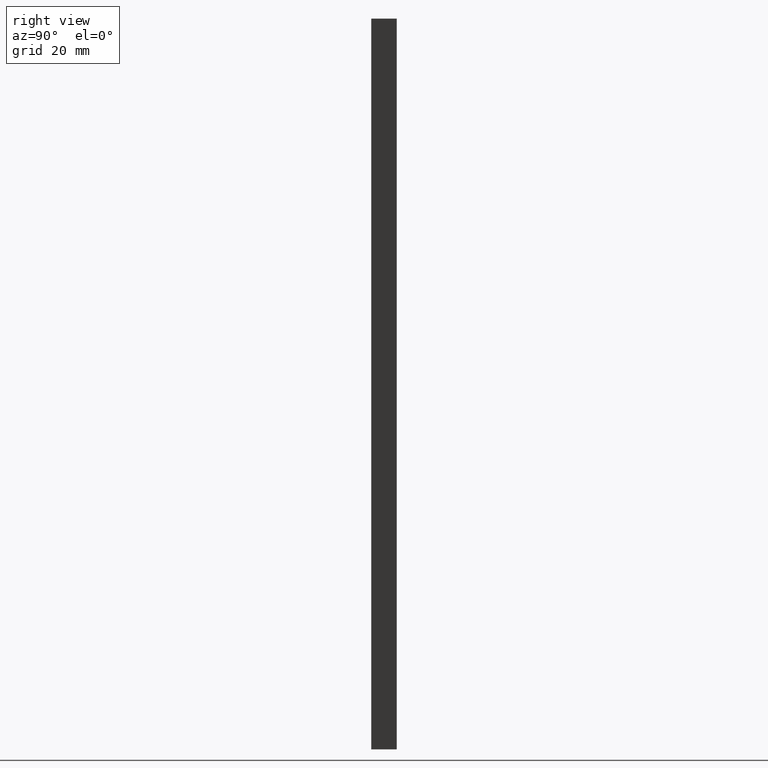
[diagram: clean part render]
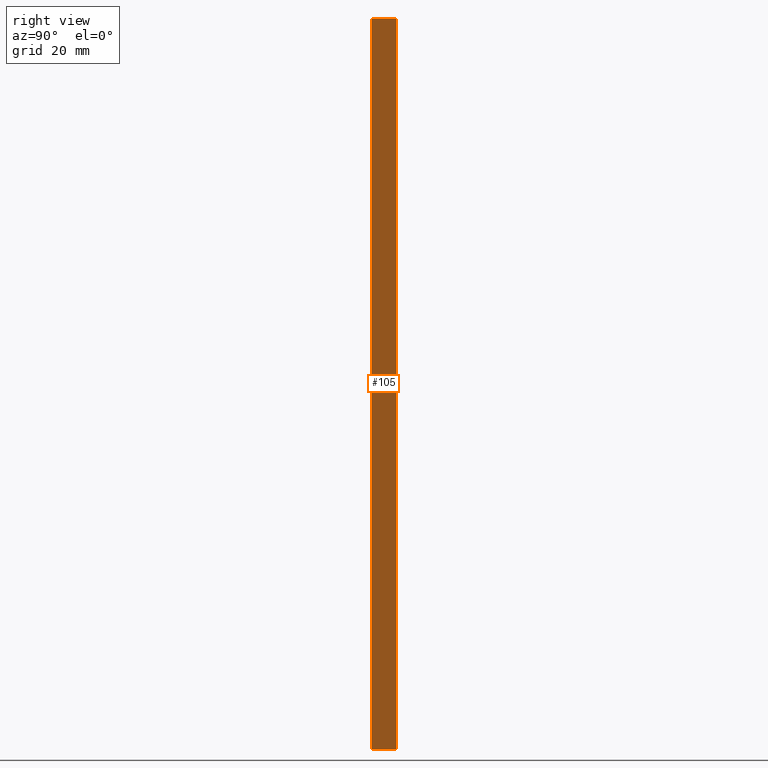
[diagram: same view with one face highlighted and labeled with its STEP entity id]
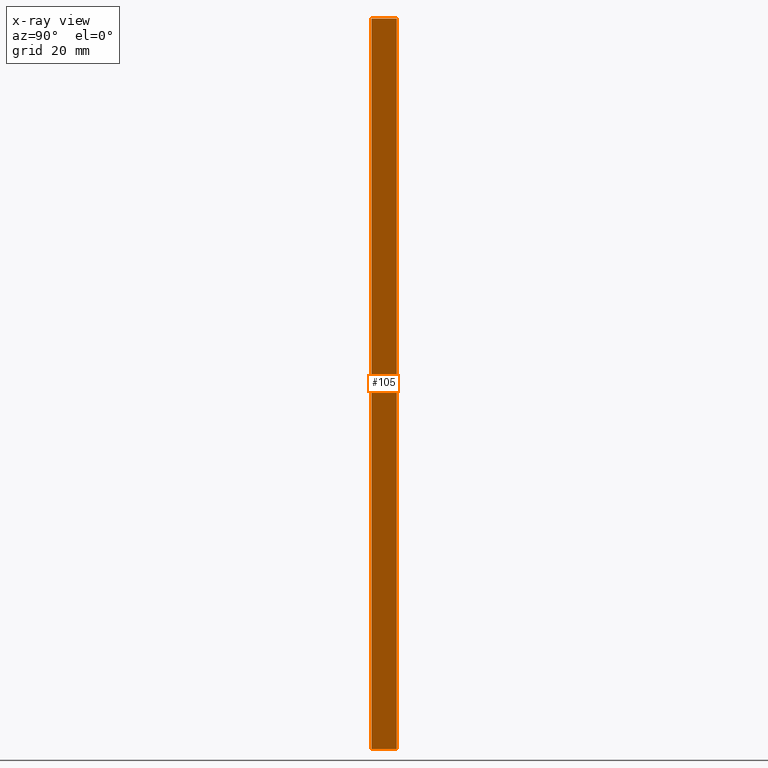
[diagram: x-ray of the same camera — body ghosted, the highlighted face saturated]
A machine part, right view. The second image highlights one B-rep face of the part: STEP entity #105.
The next image is the same camera in x-ray: the body ghosted, the highlighted face saturated — about 0% of this face is hidden behind the body in this view.
In plain terms, the highlighted planar face has unit normal (0.9397, 0.342, 0).
Its self-contained STEP definition (entity closure, byte-faithful):
#19=FACE_OUTER_BOUND('',#25,.T.);
#25=EDGE_LOOP('',(#84,#85,#86,#87));
#28=LINE('',#167,#40);
#36=LINE('',#182,#48);
#37=LINE('',#185,#49);
#38=LINE('',#186,#50);
#40=VECTOR('',#141,10.);
#48=VECTOR('',#153,10.);
#49=VECTOR('',#156,10.);
#50=VECTOR('',#157,10.);
#52=VERTEX_POINT('',#165);
#53=VERTEX_POINT('',#166);
#58=VERTEX_POINT('',#180);
#59=VERTEX_POINT('',#184);
#60=EDGE_CURVE('',#52,#53,#28,.T.);
#68=EDGE_CURVE('',#58,#53,#36,.T.);
#69=EDGE_CURVE('',#58,#59,#37,.T.);
#70=EDGE_CURVE('',#52,#59,#38,.T.);
#84=ORIENTED_EDGE('',*,*,#69,.T.);
#85=ORIENTED_EDGE('',*,*,#70,.F.);
#86=ORIENTED_EDGE('',*,*,#60,.T.);
#87=ORIENTED_EDGE('',*,*,#68,.F.);
#99=PLANE('',#134);
#105=ADVANCED_FACE('',(#19),#99,.T.);
#134=AXIS2_PLACEMENT_3D('',#183,#154,#155);
#141=DIRECTION('',(-0.342020143325669,0.939692620785908,0.));
#153=DIRECTION('',(0.,0.,-1.));
#154=DIRECTION('center_axis',(0.939692620785908,0.342020143325669,0.));
#155=DIRECTION('ref_axis',(0.,0.,-1.));
#156=DIRECTION('',(0.342020143325669,-0.939692620785908,0.));
#157=DIRECTION('',(0.,0.,1.));
#165=CARTESIAN_POINT('',(3.,-1.11022302462516E-15,-60.));
#166=CARTESIAN_POINT('',(1.47132501608195,4.2,-60.));
#167=CARTESIAN_POINT('',(1.47132501608195,4.2,-60.));
#180=CARTESIAN_POINT('',(1.47132501608195,4.2,60.));
#182=CARTESIAN_POINT('',(1.47132501608195,4.2,0.));
#183=CARTESIAN_POINT('Origin',(1.47132501608195,4.2,0.));
#184=CARTESIAN_POINT('',(3.,-1.11022302462516E-15,60.));
#185=CARTESIAN_POINT('',(1.47132501608195,4.2,60.));
#186=CARTESIAN_POINT('',(3.,-1.11022302462516E-15,0.));